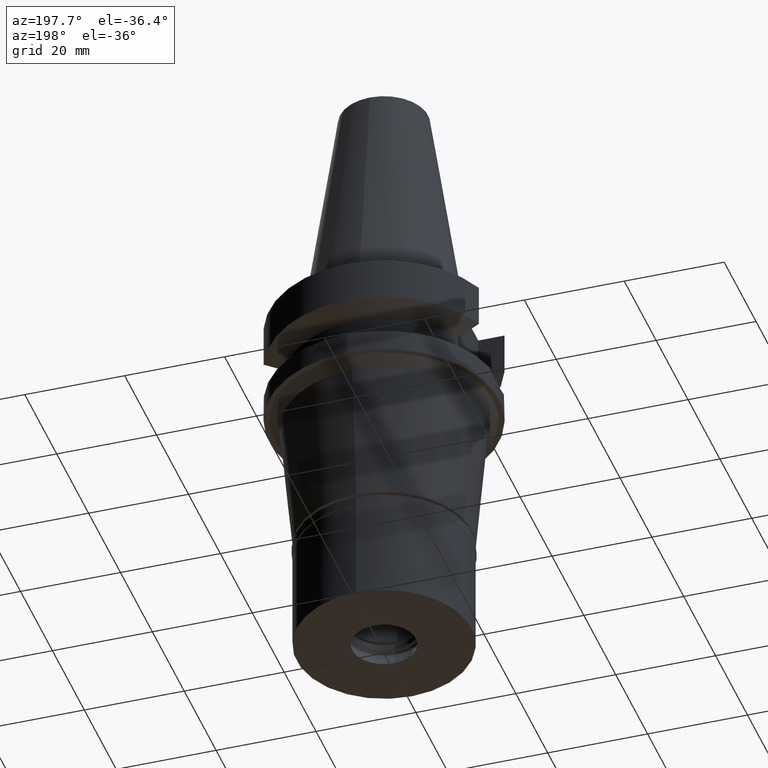
[diagram: clean part render]
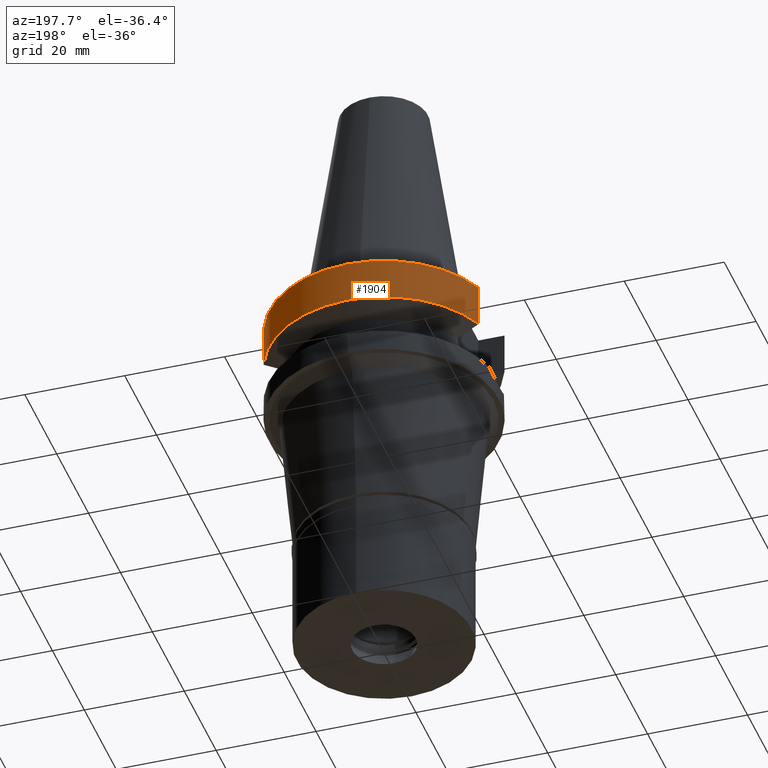
[diagram: same view with one face highlighted and labeled with its STEP entity id]
A machine part, auxiliary view. The second image highlights one B-rep face of the part: STEP entity #1904.
In plain terms, the highlighted cylindrical surface (partial cylindrical patch) has radius 23 mm, axis along (0, 0, -1).
Its self-contained STEP definition (entity closure, byte-faithful):
#20 = EDGE_CURVE ( 'NONE', #223, #2959, #2449, .T. ) ;
#145 = EDGE_LOOP ( 'NONE', ( #1949, #713, #2352, #2801 ) ) ;
#190 = DIRECTION ( 'NONE',  ( 0.0000000000000000000, 0.0000000000000000000, -1.000000000000000000 ) ) ;
#223 = VERTEX_POINT ( 'NONE', #721 ) ;
#237 = AXIS2_PLACEMENT_3D ( 'NONE', #1935, #310, #1249 ) ;
#310 = DIRECTION ( 'NONE',  ( 0.0000000000000000000, 0.0000000000000000000, 1.000000000000000000 ) ) ;
#339 = EDGE_CURVE ( 'NONE', #518, #1077, #2418, .T. ) ;
#366 = CARTESIAN_POINT ( 'NONE',  ( 0.0000000000000000000, 0.0000000000000000000, 0.0000000000000000000 ) ) ;
#518 = VERTEX_POINT ( 'NONE', #1047 ) ;
#616 = LINE ( 'NONE', #1375, #1394 ) ;
#675 = LINE ( 'NONE', #1647, #2466 ) ;
#713 = ORIENTED_EDGE ( 'NONE', *, *, #1481, .F. ) ;
#721 = CARTESIAN_POINT ( 'NONE',  ( 21.54524325238000060, 8.049999577379001181, -9.567211146543000311 ) ) ;
#925 = DIRECTION ( 'NONE',  ( -1.843134610276992765E-08, 4.933012972513982769E-08, 0.9999999999999985567 ) ) ;
#1047 = CARTESIAN_POINT ( 'NONE',  ( -21.54524309446999908, 8.050000000000000711, -1.000000000000000000 ) ) ;
#1077 = VERTEX_POINT ( 'NONE', #1990 ) ;
#1210 = CARTESIAN_POINT ( 'NONE',  ( 0.0000000000000000000, 0.0000000000000000000, -1.000000000000000000 ) ) ;
#1249 = DIRECTION ( 'NONE',  ( 0.0000000000000000000, 1.000000000000000000, 0.0000000000000000000 ) ) ;
#1375 = CARTESIAN_POINT ( 'NONE',  ( -21.54524309446999908, 8.050000000000000711, -1.000000000000000000 ) ) ;
#1388 = AXIS2_PLACEMENT_3D ( 'NONE', #1210, #1454, #2402 ) ;
#1394 = VECTOR ( 'NONE', #1550, 1000.000000000000114 ) ;
#1454 = DIRECTION ( 'NONE',  ( 0.0000000000000000000, 0.0000000000000000000, -1.000000000000000000 ) ) ;
#1481 = EDGE_CURVE ( 'NONE', #223, #1077, #675, .T. ) ;
#1550 = DIRECTION ( 'NONE',  ( 9.134696492506688232E-08, 2.444834603156914366E-07, -0.9999999999999659162 ) ) ;
#1583 = CYLINDRICAL_SURFACE ( 'NONE', #2332, 23.00000000000000000 ) ;
#1647 = CARTESIAN_POINT ( 'NONE',  ( 21.54524325238000060, 8.049999577379001181, -9.567211146543000311 ) ) ;
#1809 = EDGE_CURVE ( 'NONE', #518, #2959, #616, .T. ) ;
#1861 = CARTESIAN_POINT ( 'NONE',  ( -21.54524231189000005, 8.050002094537999753, -9.567194606710000215 ) ) ;
#1904 = ADVANCED_FACE ( 'NONE', ( #2046 ), #1583, .T. ) ;
#1935 = CARTESIAN_POINT ( 'NONE',  ( 0.0000000000000000000, 0.0000000000000000000, -9.567208369710998639 ) ) ;
#1949 = ORIENTED_EDGE ( 'NONE', *, *, #339, .T. ) ;
#1990 = CARTESIAN_POINT ( 'NONE',  ( 21.54524309446999908, 8.050000000000000711, -1.000000000000000000 ) ) ;
#2046 = FACE_OUTER_BOUND ( 'NONE', #145, .T. ) ;
#2332 = AXIS2_PLACEMENT_3D ( 'NONE', #366, #190, #2531 ) ;
#2352 = ORIENTED_EDGE ( 'NONE', *, *, #20, .T. ) ;
#2402 = DIRECTION ( 'NONE',  ( -0.9367496997597649644, 0.3499999999999864886, 0.0000000000000000000 ) ) ;
#2418 = CIRCLE ( 'NONE', #1388, 23.00000000000000355 ) ;
#2449 = CIRCLE ( 'NONE', #237, 23.00000000000000000 ) ;
#2466 = VECTOR ( 'NONE', #925, 1000.000000000000114 ) ;
#2531 = DIRECTION ( 'NONE',  ( 0.0000000000000000000, -1.000000000000000000, 0.0000000000000000000 ) ) ;
#2801 = ORIENTED_EDGE ( 'NONE', *, *, #1809, .F. ) ;
#2959 = VERTEX_POINT ( 'NONE', #1861 ) ;